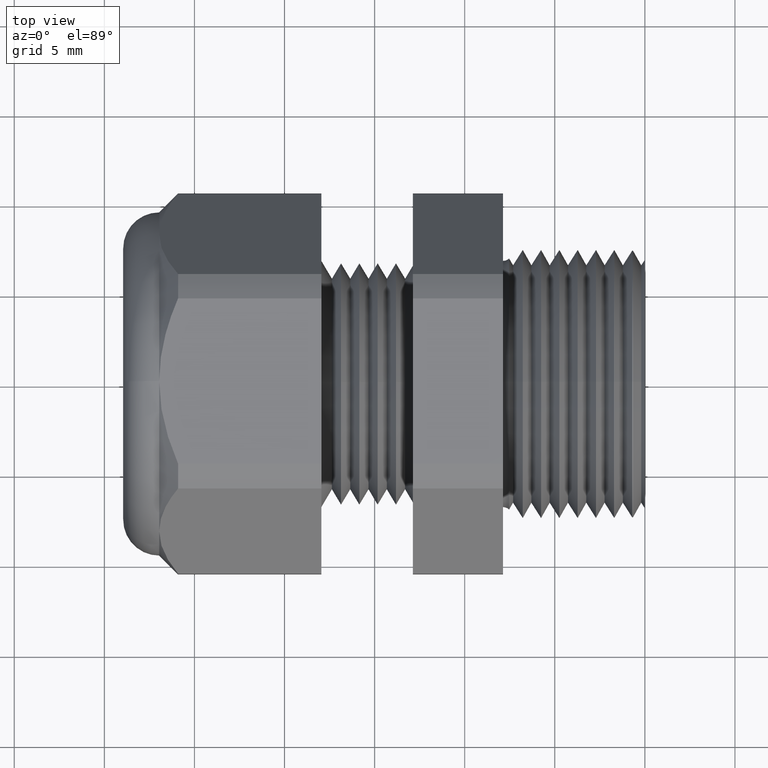
[diagram: clean part render]
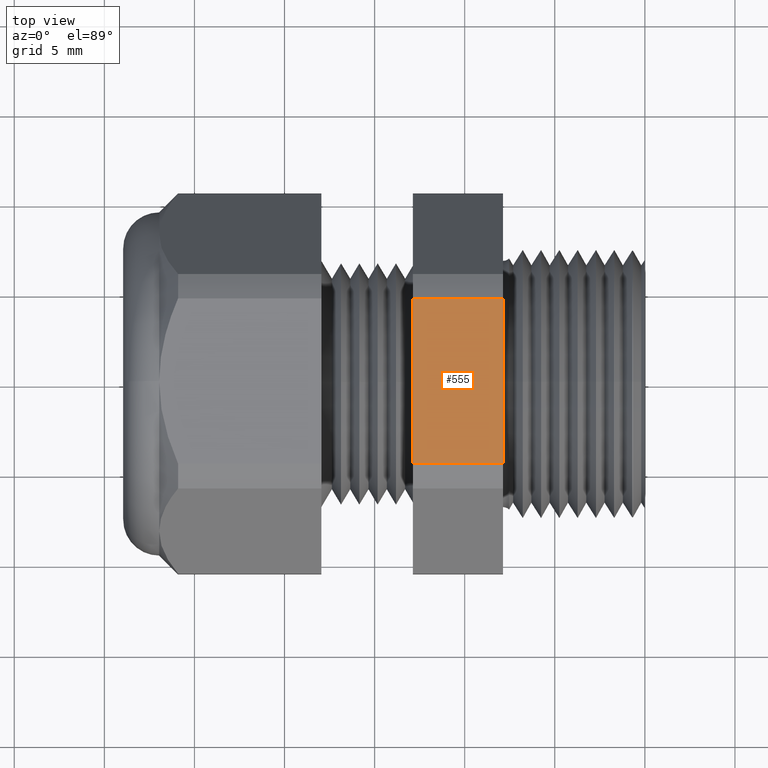
[diagram: same view with one face highlighted and labeled with its STEP entity id]
A machine part, top view. The second image highlights one B-rep face of the part: STEP entity #555.
In plain terms, the highlighted planar face has unit normal (0, 0, 1).
Its self-contained STEP definition (entity closure, byte-faithful):
#9 = EDGE_CURVE ( 'NONE', #12, #10, #1144, .T. ) ;
#10 = VERTEX_POINT ( 'NONE', #1140 ) ;
#12 = VERTEX_POINT ( 'NONE', #1139 ) ;
#523 = VERTEX_POINT ( 'NONE', #1870 ) ;
#553 = EDGE_CURVE ( 'NONE', #12, #582, #2196, .T. ) ;
#555 = ADVANCED_FACE ( 'NONE', ( #2188 ), #2187, .T. ) ;
#556 = EDGE_LOOP ( 'NONE', ( #557, #611, #612, #614 ) ) ;
#557 = ORIENTED_EDGE ( 'NONE', *, *, #553, .T. ) ;
#581 = EDGE_CURVE ( 'NONE', #523, #582, #2229, .T. ) ;
#582 = VERTEX_POINT ( 'NONE', #2225 ) ;
#611 = ORIENTED_EDGE ( 'NONE', *, *, #581, .F. ) ;
#612 = ORIENTED_EDGE ( 'NONE', *, *, #613, .F. ) ;
#613 = EDGE_CURVE ( 'NONE', #10, #523, #2293, .T. ) ;
#614 = ORIENTED_EDGE ( 'NONE', *, *, #9, .F. ) ;
#1139 = CARTESIAN_POINT ( 'NONE',  ( -0.3099999999999998300, 0.1806628420566886700, 0.3749999999999999400 ) ) ;
#1140 = CARTESIAN_POINT ( 'NONE',  ( -0.3099999999999998300, -0.1806628420566886700, 0.3749999999999999400 ) ) ;
#1141 = DIRECTION ( 'NONE',  ( 0.0000000000000000000, -1.000000000000000000, 0.0000000000000000000 ) ) ;
#1142 = VECTOR ( 'NONE', #1141, 39.37007874015748100 ) ;
#1143 = CARTESIAN_POINT ( 'NONE',  ( -0.3100000000000000000, 0.7500000000000002200, 0.3749999999999999400 ) ) ;
#1144 = LINE ( 'NONE', #1143, #1142 ) ;
#1870 = CARTESIAN_POINT ( 'NONE',  ( -0.5068503937007873300, -0.1806628420566886700, 0.3749999999999999400 ) ) ;
#2183 = DIRECTION ( 'NONE',  ( 1.000000000000000000, 0.0000000000000000000, 0.0000000000000000000 ) ) ;
#2184 = DIRECTION ( 'NONE',  ( 0.0000000000000000000, 0.0000000000000000000, 1.000000000000000000 ) ) ;
#2185 = CARTESIAN_POINT ( 'NONE',  ( 0.0000000000000000000, -0.1806628420566886700, 0.3749999999999999400 ) ) ;
#2186 = AXIS2_PLACEMENT_3D ( 'NONE', #2185, #2184, #2183 ) ;
#2187 = PLANE ( 'NONE',  #2186 ) ;
#2188 = FACE_OUTER_BOUND ( 'NONE', #556, .T. ) ;
#2189 = DIRECTION ( 'NONE',  ( -1.000000000000000000, 0.0000000000000000000, 0.0000000000000000000 ) ) ;
#2190 = VECTOR ( 'NONE', #2189, 39.37007874015748100 ) ;
#2191 = CARTESIAN_POINT ( 'NONE',  ( 0.0000000000000000000, 0.1806628420566886700, 0.3749999999999999400 ) ) ;
#2196 = LINE ( 'NONE', #2191, #2190 ) ;
#2225 = CARTESIAN_POINT ( 'NONE',  ( -0.5068503937007873300, 0.1806628420566886700, 0.3749999999999999400 ) ) ;
#2226 = DIRECTION ( 'NONE',  ( 0.0000000000000000000, 1.000000000000000000, 0.0000000000000000000 ) ) ;
#2227 = VECTOR ( 'NONE', #2226, 39.37007874015748100 ) ;
#2228 = CARTESIAN_POINT ( 'NONE',  ( -0.5068503937007874400, 0.7500000000000002200, 0.3749999999999999400 ) ) ;
#2229 = LINE ( 'NONE', #2228, #2227 ) ;
#2290 = DIRECTION ( 'NONE',  ( -1.000000000000000000, 0.0000000000000000000, 0.0000000000000000000 ) ) ;
#2291 = VECTOR ( 'NONE', #2290, 39.37007874015748100 ) ;
#2292 = CARTESIAN_POINT ( 'NONE',  ( 0.0000000000000000000, -0.1806628420566886700, 0.3749999999999999400 ) ) ;
#2293 = LINE ( 'NONE', #2292, #2291 ) ;